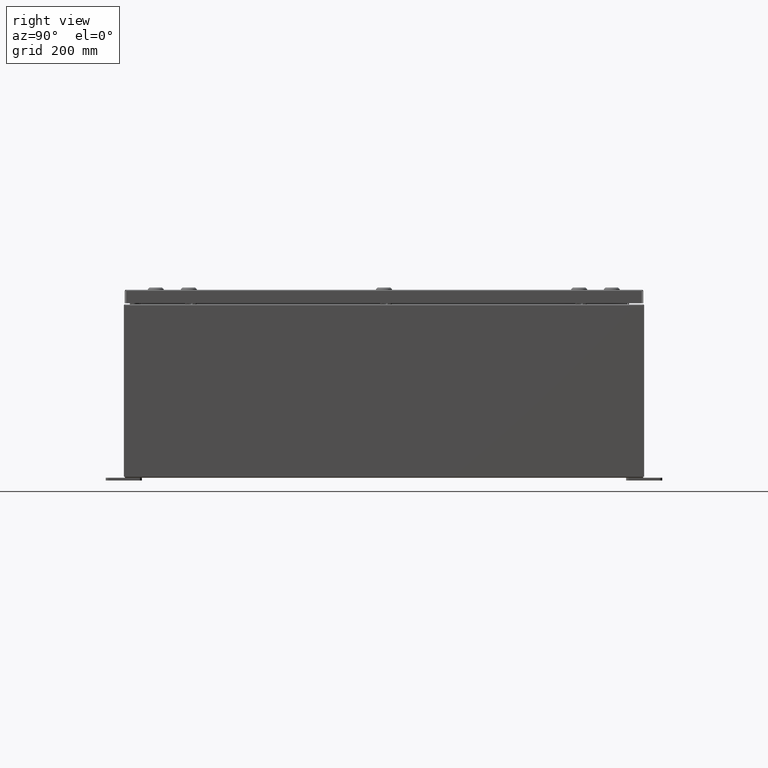
[diagram: clean part render]
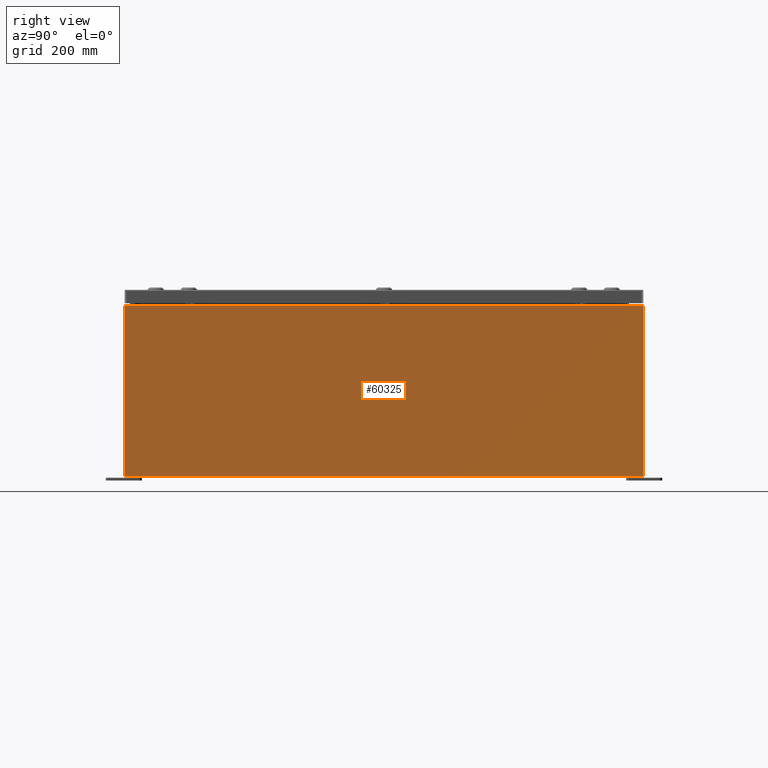
[diagram: same view with one face highlighted and labeled with its STEP entity id]
A machine part, right view. The second image highlights one B-rep face of the part: STEP entity #60325.
In plain terms, the highlighted planar face has unit normal (-1, 0, 0).
Its self-contained STEP definition (entity closure, byte-faithful):
#249 = VERTEX_POINT ( 'NONE', #32897 ) ;
#1833 = LINE ( 'NONE', #54882, #15359 ) ;
#4444 = VECTOR ( 'NONE', #57221, 39.37007874015748100 ) ;
#5188 = ORIENTED_EDGE ( 'NONE', *, *, #34980, .T. ) ;
#6260 = CARTESIAN_POINT ( 'NONE',  ( 14.99999999999999800, -17.92530000000000000, -5.249105881172690100E-014 ) ) ;
#6953 = LINE ( 'NONE', #20289, #59495 ) ;
#8704 = VERTEX_POINT ( 'NONE', #51105 ) ;
#9841 = ORIENTED_EDGE ( 'NONE', *, *, #41981, .F. ) ;
#10316 = DIRECTION ( 'NONE',  ( 3.482016343714355500E-015, -1.832640180902292400E-016, 1.000000000000000000 ) ) ;
#14708 = PLANE ( 'NONE',  #61283 ) ;
#15359 = VECTOR ( 'NONE', #24575, 39.37007874015748100 ) ;
#19805 = CARTESIAN_POINT ( 'NONE',  ( 14.99999999999999800, 0.0000000000000000000, -5.249105881172690100E-014 ) ) ;
#20289 = CARTESIAN_POINT ( 'NONE',  ( 14.99999999999999800, 17.92530000000000000, -4.920599630825411400E-014 ) ) ;
#23073 = LINE ( 'NONE', #63274, #36622 ) ;
#24575 = DIRECTION ( 'NONE',  ( -0.0000000000000000000, -1.000000000000000000, -0.0000000000000000000 ) ) ;
#30051 = DIRECTION ( 'NONE',  ( 3.482016343714355100E-015, 0.0000000000000000000, 1.000000000000000000 ) ) ;
#30631 = VERTEX_POINT ( 'NONE', #32865 ) ;
#31492 = LINE ( 'NONE', #6260, #4444 ) ;
#32742 = DIRECTION ( 'NONE',  ( 2.122662239958547800E-031, -1.000000000000000000, 6.096072018129156600E-017 ) ) ;
#32865 = CARTESIAN_POINT ( 'NONE',  ( 14.99999999999999800, -17.92530000000000000, 0.01300000000000022700 ) ) ;
#32897 = CARTESIAN_POINT ( 'NONE',  ( 14.99999999999999800, 17.92530000000000000, 0.01299999999999766100 ) ) ;
#33454 = FACE_OUTER_BOUND ( 'NONE', #53272, .T. ) ;
#34980 = EDGE_CURVE ( 'NONE', #58714, #30631, #31492, .T. ) ;
#36622 = VECTOR ( 'NONE', #32742, 39.37007874015748100 ) ;
#38471 = EDGE_CURVE ( 'NONE', #8704, #58714, #1833, .T. ) ;
#41981 = EDGE_CURVE ( 'NONE', #249, #30631, #23073, .T. ) ;
#45084 = CARTESIAN_POINT ( 'NONE',  ( 15.00000000000004100, -17.92530000000000000, 11.83760000000000000 ) ) ;
#51105 = CARTESIAN_POINT ( 'NONE',  ( 15.00000000000004100, 17.92530000000000000, 11.83760000000000000 ) ) ;
#51868 = ORIENTED_EDGE ( 'NONE', *, *, #57367, .T. ) ;
#53272 = EDGE_LOOP ( 'NONE', ( #59155, #5188, #9841, #51868 ) ) ;
#54882 = CARTESIAN_POINT ( 'NONE',  ( 15.00000000000004100, 17.92530000000000000, 11.83760000000000000 ) ) ;
#57221 = DIRECTION ( 'NONE',  ( -3.482016343714355500E-015, 0.0000000000000000000, -1.000000000000000000 ) ) ;
#57367 = EDGE_CURVE ( 'NONE', #249, #8704, #6953, .T. ) ;
#58714 = VERTEX_POINT ( 'NONE', #45084 ) ;
#59155 = ORIENTED_EDGE ( 'NONE', *, *, #38471, .T. ) ;
#59495 = VECTOR ( 'NONE', #10316, 39.37007874015748100 ) ;
#60325 = ADVANCED_FACE ( 'NONE', ( #33454 ), #14708, .F. ) ;
#60582 = DIRECTION ( 'NONE',  ( -1.000000000000000000, 0.0000000000000000000, 3.482016343714355100E-015 ) ) ;
#61283 = AXIS2_PLACEMENT_3D ( 'NONE', #19805, #60582, #30051 ) ;
#63274 = CARTESIAN_POINT ( 'NONE',  ( 14.99999999999999800, -17.92530000000000000, 0.01299999999999984700 ) ) ;